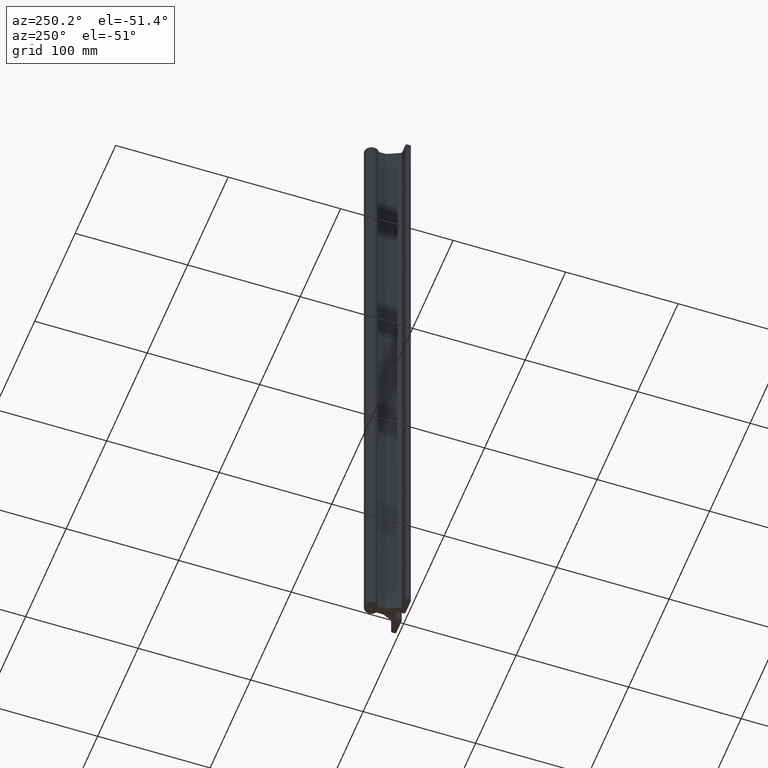
[diagram: clean part render]
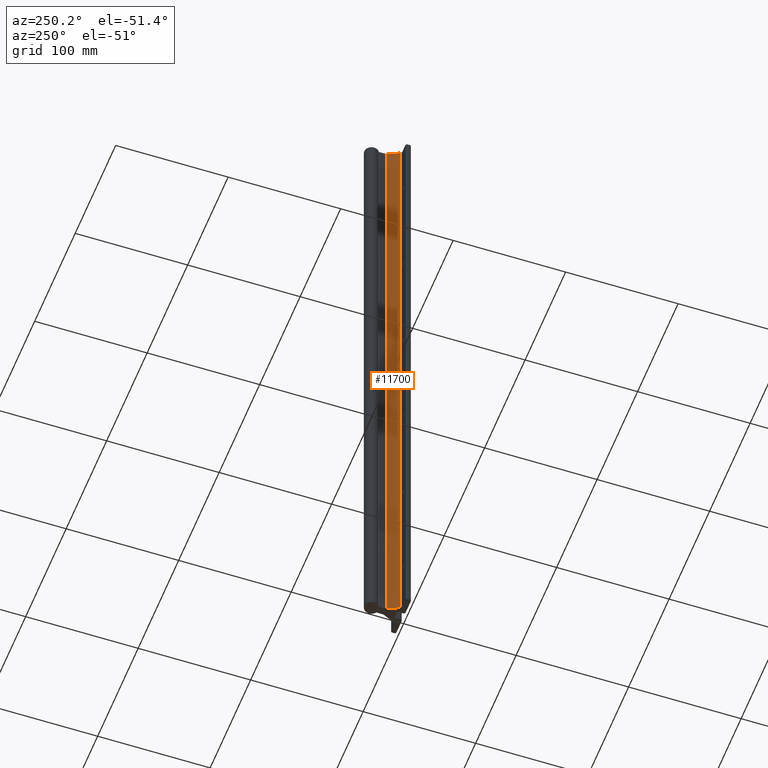
[diagram: same view with one face highlighted and labeled with its STEP entity id]
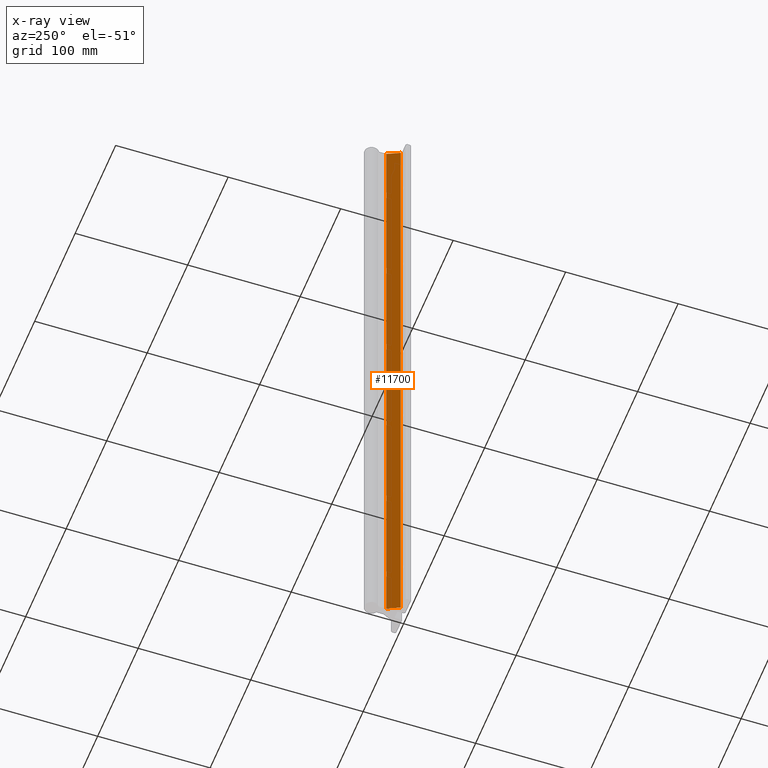
[diagram: x-ray of the same camera — body ghosted, the highlighted face saturated]
A machine part, auxiliary view. The second image highlights one B-rep face of the part: STEP entity #11700.
The next image is the same camera in x-ray: the body ghosted, the highlighted face saturated — about 0% of this face is hidden behind the body in this view.
In plain terms, the highlighted planar face has unit normal (-0.9063, 0.4226, 0).
Its self-contained STEP definition (entity closure, byte-faithful):
#101 = EDGE_LOOP ( 'NONE', ( #5428, #5194, #278, #6303 ) ) ;
#278 = ORIENTED_EDGE ( 'NONE', *, *, #3246, .F. ) ;
#284 = VECTOR ( 'NONE', #3144, 39.37007874015748143 ) ;
#338 = CARTESIAN_POINT ( 'NONE',  ( -0.3338457484000001418, 0.2221429042999998049, 0.000000000000000000 ) ) ;
#597 = CARTESIAN_POINT ( 'NONE',  ( -0.1358557632999980724, 0.6467337975999984945, -24.00000000000000355 ) ) ;
#823 = VECTOR ( 'NONE', #11300, 39.37007874015748143 ) ;
#1252 = CARTESIAN_POINT ( 'NONE',  ( -0.3338457484000001418, 0.2221429042999998049, -25.75252057657289129 ) ) ;
#1290 = CARTESIAN_POINT ( 'NONE',  ( -0.3338457484000001418, 0.2221429042999998327, -24.00000000000000355 ) ) ;
#2263 = VERTEX_POINT ( 'NONE', #338 ) ;
#2608 = LINE ( 'NONE', #597, #7178 ) ;
#3144 = DIRECTION ( 'NONE',  ( -0.4226182616904512468, -0.9063077870600810826, 0.000000000000000000 ) ) ;
#3217 = CARTESIAN_POINT ( 'NONE',  ( -0.1358557632999980447, 0.6467337975999984945, -24.00000000000000355 ) ) ;
#3246 = EDGE_CURVE ( 'NONE', #11762, #2263, #5304, .T. ) ;
#3699 = DIRECTION ( 'NONE',  ( 0.4226182616904511913, 0.9063077870600810826, -0.000000000000000000 ) ) ;
#4398 = VERTEX_POINT ( 'NONE', #3217 ) ;
#5138 = AXIS2_PLACEMENT_3D ( 'NONE', #5953, #10183, #13231 ) ;
#5194 = ORIENTED_EDGE ( 'NONE', *, *, #10548, .T. ) ;
#5304 = LINE ( 'NONE', #10613, #284 ) ;
#5428 = ORIENTED_EDGE ( 'NONE', *, *, #12536, .F. ) ;
#5953 = CARTESIAN_POINT ( 'NONE',  ( -0.1358557632999980724, 0.6467337975999984945, -25.75252057657289129 ) ) ;
#6026 = FACE_OUTER_BOUND ( 'NONE', #101, .T. ) ;
#6084 = CARTESIAN_POINT ( 'NONE',  ( -0.1358557632999980447, 0.6467337975999984945, -25.75252057657289129 ) ) ;
#6303 = ORIENTED_EDGE ( 'NONE', *, *, #10865, .F. ) ;
#7178 = VECTOR ( 'NONE', #3699, 39.37007874015748854 ) ;
#8633 = LINE ( 'NONE', #1252, #12993 ) ;
#8837 = VERTEX_POINT ( 'NONE', #1290 ) ;
#9668 = CARTESIAN_POINT ( 'NONE',  ( -0.1358557632999980447, 0.6467337975999984945, 0.000000000000000000 ) ) ;
#10183 = DIRECTION ( 'NONE',  ( -0.9063077870600810826, 0.4226182616904511913, 0.000000000000000000 ) ) ;
#10548 = EDGE_CURVE ( 'NONE', #8837, #2263, #8633, .T. ) ;
#10613 = CARTESIAN_POINT ( 'NONE',  ( -0.1358557632999980724, 0.6467337975999984945, 0.000000000000000000 ) ) ;
#10865 = EDGE_CURVE ( 'NONE', #4398, #11762, #12239, .T. ) ;
#11154 = PLANE ( 'NONE',  #5138 ) ;
#11300 = DIRECTION ( 'NONE',  ( 0.000000000000000000, 0.000000000000000000, 1.000000000000000000 ) ) ;
#11700 = ADVANCED_FACE ( 'NONE', ( #6026 ), #11154, .T. ) ;
#11707 = DIRECTION ( 'NONE',  ( 0.000000000000000000, 0.000000000000000000, 1.000000000000000000 ) ) ;
#11762 = VERTEX_POINT ( 'NONE', #9668 ) ;
#12239 = LINE ( 'NONE', #6084, #823 ) ;
#12536 = EDGE_CURVE ( 'NONE', #8837, #4398, #2608, .T. ) ;
#12993 = VECTOR ( 'NONE', #11707, 39.37007874015748143 ) ;
#13231 = DIRECTION ( 'NONE',  ( -0.4226182616904511913, -0.9063077870600810826, 0.000000000000000000 ) ) ;